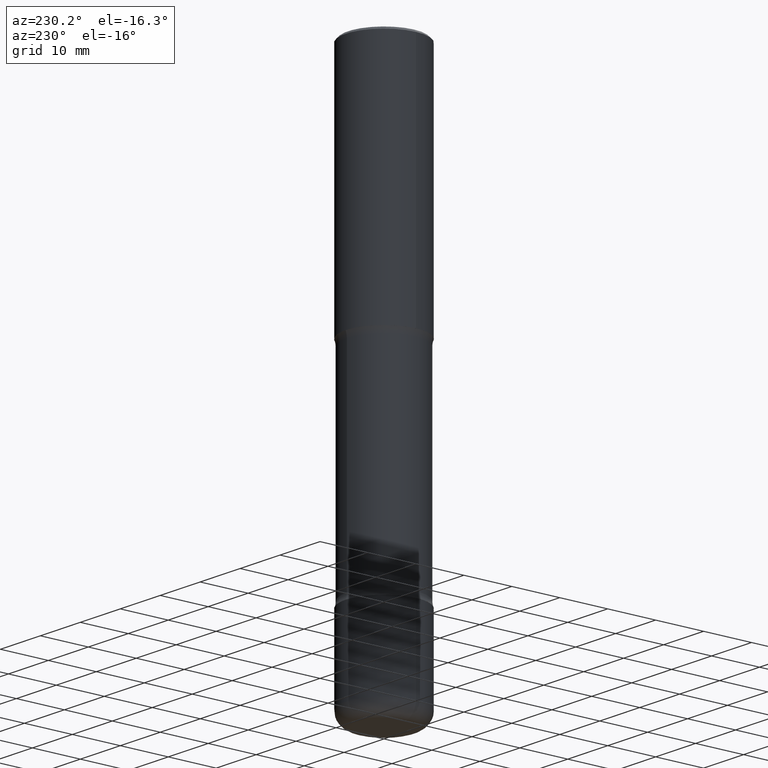
[diagram: clean part render]
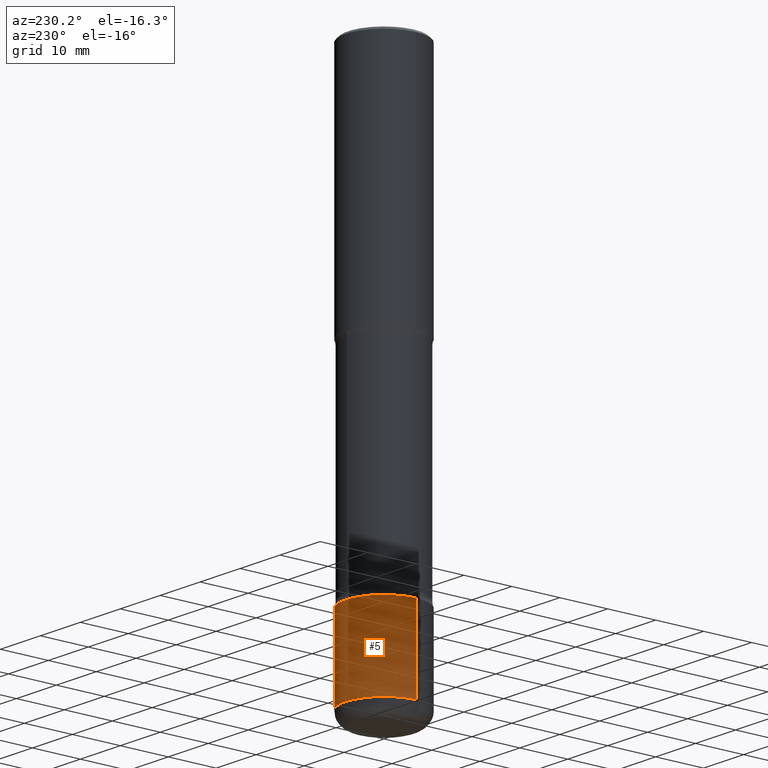
[diagram: same view with one face highlighted and labeled with its STEP entity id]
A machine part, auxiliary view. The second image highlights one B-rep face of the part: STEP entity #5.
In plain terms, the highlighted cylindrical surface (partial cylindrical patch) has radius 7.9997 mm, axis along (-0, 0, 1).
Its self-contained STEP definition (entity closure, byte-faithful):
#5 = ADVANCED_FACE ( 'NONE', ( #7 ), #224, .T. ) ;
#7 = FACE_OUTER_BOUND ( 'NONE', #116, .T. ) ;
#13 = CARTESIAN_POINT ( 'NONE',  ( -0.3149500000000002853, -1.315783261735241693E-14, -4.409500000000000419 ) ) ;
#43 = LINE ( 'NONE', #318, #110 ) ;
#63 = EDGE_CURVE ( 'NONE', #337, #340, #186, .T. ) ;
#83 = CIRCLE ( 'NONE', #403, 0.3149500000000002298 ) ;
#88 = EDGE_CURVE ( 'NONE', #470, #287, #83, .T. ) ;
#105 = CARTESIAN_POINT ( 'NONE',  ( 1.078329470087336022E-28, -1.539568696362885450E-14, -4.409500000000000419 ) ) ;
#110 = VECTOR ( 'NONE', #188, 39.37007874015748143 ) ;
#116 = EDGE_LOOP ( 'NONE', ( #126, #437, #218, #297 ) ) ;
#126 = ORIENTED_EDGE ( 'NONE', *, *, #63, .T. ) ;
#186 = CIRCLE ( 'NONE', #324, 0.3149500000000002853 ) ;
#188 = DIRECTION ( 'NONE',  ( -2.445468806185136877E-29, 3.491481338843145188E-15, 1.000000000000000000 ) ) ;
#196 = CARTESIAN_POINT ( 'NONE',  ( 0.3149500000000002853, -1.759497105896614279E-14, -4.409500000000000419 ) ) ;
#207 = EDGE_CURVE ( 'NONE', #340, #287, #43, .T. ) ;
#218 = ORIENTED_EDGE ( 'NONE', *, *, #88, .F. ) ;
#224 = CYLINDRICAL_SURFACE ( 'NONE', #311, 0.3149500000000002853 ) ;
#239 = LINE ( 'NONE', #408, #419 ) ;
#248 = EDGE_CURVE ( 'NONE', #337, #470, #239, .T. ) ;
#272 = DIRECTION ( 'NONE',  ( 1.000000000000000000, -6.982962677686267499E-15, 4.876176775795936353E-29 ) ) ;
#287 = VERTEX_POINT ( 'NONE', #541 ) ;
#297 = ORIENTED_EDGE ( 'NONE', *, *, #248, .F. ) ;
#302 = CARTESIAN_POINT ( 'NONE',  ( 0.000000000000000000, 0.000000000000000000, 0.000000000000000000 ) ) ;
#311 = AXIS2_PLACEMENT_3D ( 'NONE', #302, #487, #272 ) ;
#318 = CARTESIAN_POINT ( 'NONE',  ( -0.3149500000000002853, 2.237854346276437562E-15, -1.549218606675783797E-29 ) ) ;
#324 = AXIS2_PLACEMENT_3D ( 'NONE', #105, #375, #455 ) ;
#337 = VERTEX_POINT ( 'NONE', #196 ) ;
#340 = VERTEX_POINT ( 'NONE', #13 ) ;
#349 = DIRECTION ( 'NONE',  ( -2.445468806185136597E-29, 3.491481338843145583E-15, 1.000000000000000000 ) ) ;
#375 = DIRECTION ( 'NONE',  ( -2.445468806185136597E-29, 3.491481338843145583E-15, 1.000000000000000000 ) ) ;
#391 = CARTESIAN_POINT ( 'NONE',  ( 0.3149500000000002298, -1.525812259887842581E-14, -3.740200000000000635 ) ) ;
#403 = AXIS2_PLACEMENT_3D ( 'NONE', #494, #349, #560 ) ;
#408 = CARTESIAN_POINT ( 'NONE',  ( 0.3149500000000002853, -2.199284095337291843E-15, 1.535751875536931531E-29 ) ) ;
#415 = DIRECTION ( 'NONE',  ( -2.445468806185136877E-29, 3.491481338843145188E-15, 1.000000000000000000 ) ) ;
#419 = VECTOR ( 'NONE', #415, 39.37007874015748143 ) ;
#437 = ORIENTED_EDGE ( 'NONE', *, *, #207, .T. ) ;
#455 = DIRECTION ( 'NONE',  ( 1.000000000000000000, -6.982962677686263555E-15, 0.000000000000000000 ) ) ;
#470 = VERTEX_POINT ( 'NONE', #391 ) ;
#487 = DIRECTION ( 'NONE',  ( -2.445468806185136597E-29, 3.491481338843145583E-15, 1.000000000000000000 ) ) ;
#494 = CARTESIAN_POINT ( 'NONE',  ( 9.146542428893650504E-29, -1.305883850354113594E-14, -3.740200000000000635 ) ) ;
#541 = CARTESIAN_POINT ( 'NONE',  ( -0.3149500000000002298, -1.198940838730855845E-14, -3.740200000000000635 ) ) ;
#560 = DIRECTION ( 'NONE',  ( 1.000000000000000000, -6.982962677686264344E-15, 0.000000000000000000 ) ) ;